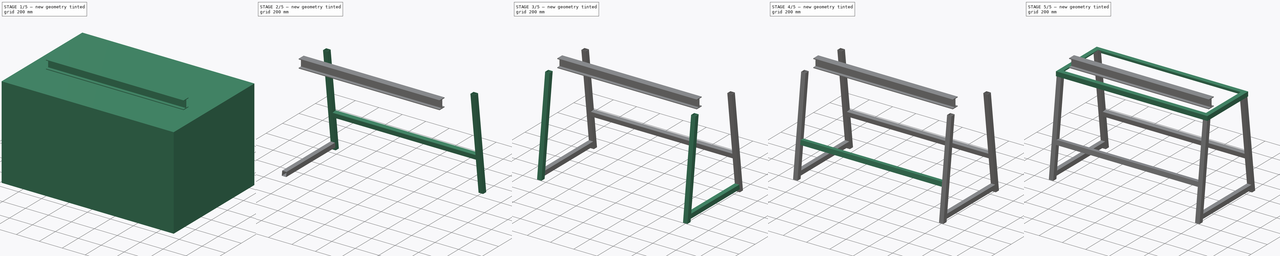
[diagram: build sequence overview — one tinted view per stage of 5, left to right]
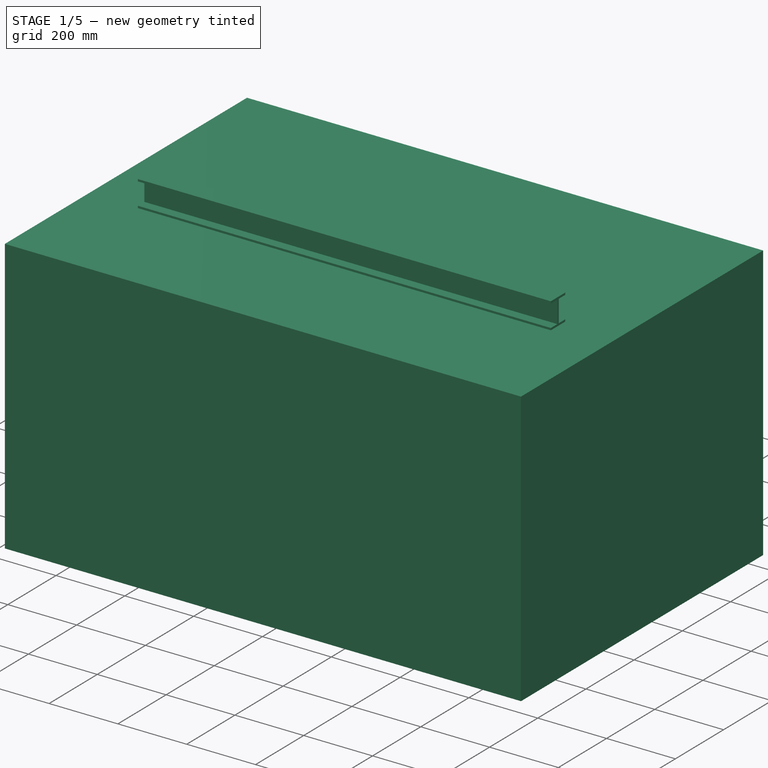
[diagram: stage 1 of 5 — iso view after this stage's code; geometry added in this stage tinted green]
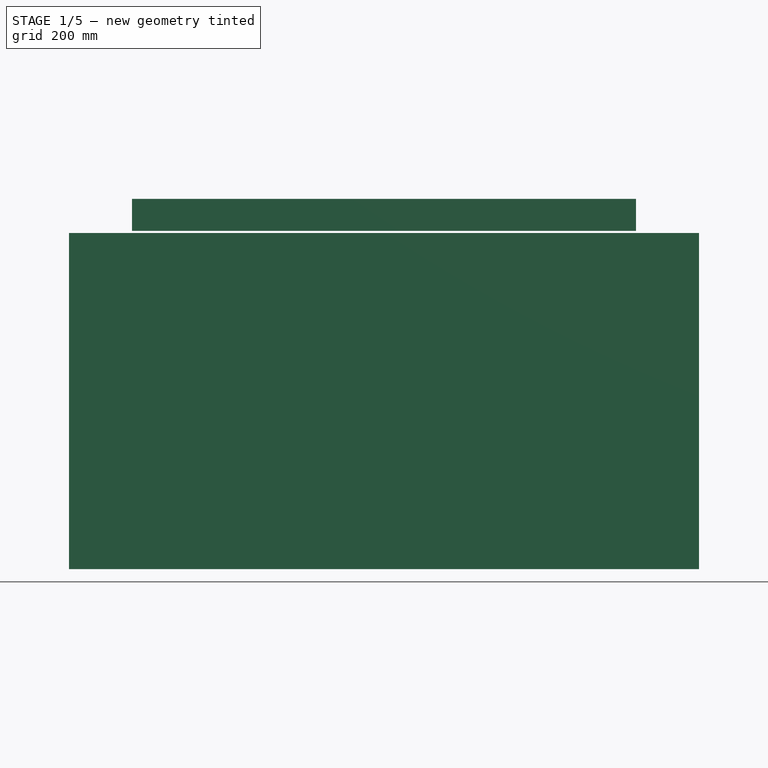
[diagram: stage 1 of 5 — front view after this stage's code; geometry added in this stage tinted green]
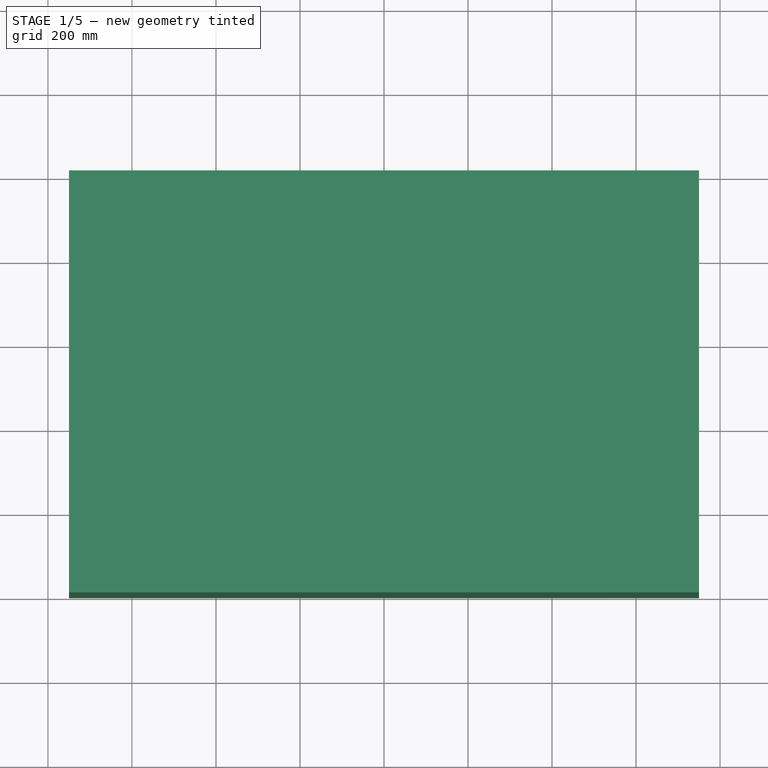
[diagram: stage 1 of 5 — top view after this stage's code; geometry added in this stage tinted green]
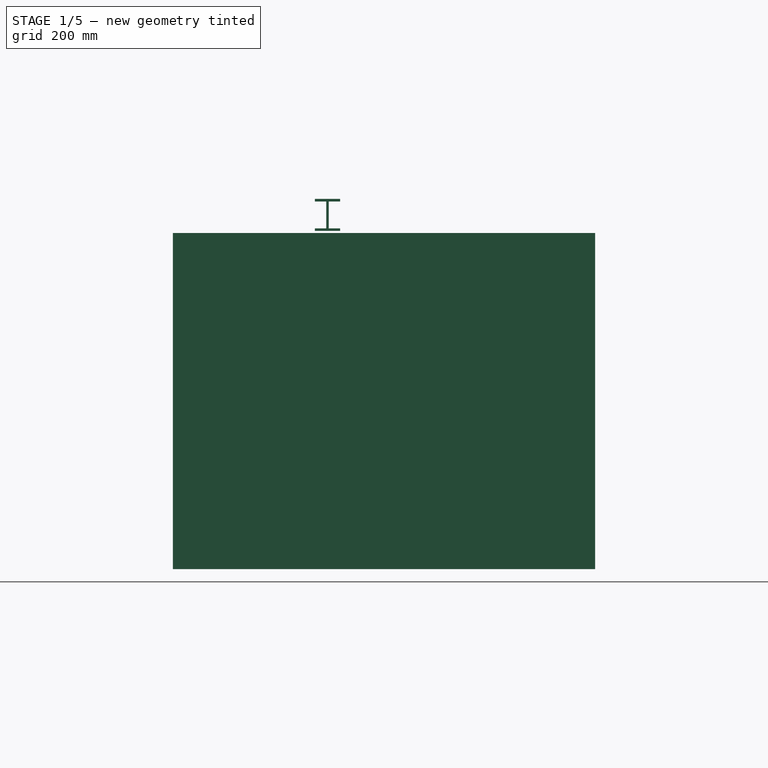
[diagram: stage 1 of 5 — right view after this stage's code; geometry added in this stage tinted green]
FCSTD DOCUMENT  (FreeCAD 0.18.4R)
Label: MESA_Dobladora
License: All rights reserved
LicenseURL: http://en.wikipedia.org/wiki/All_rights_reserved
objects: Part::Cut×11, Part::Fuse×6, Part::MultiFuse×4, Sketcher::SketchObject×3, Part::Extrusion×3, Part::Feature×1
note: 28 computed .brp shape members not serialized (recipe doc carries the construction recipe); baked Part::Feature solids carry a one-line shape summary decoded from their .brp

FEATURE [Sketcher::SketchObject] Sketch
  Placement = pos=(0,0,0) rot=(1,0,0;1.5708rad)
  sketch-geometry (4):
    g0: LineSegment StartX=-750 StartY=800 StartZ=0 EndX=750 EndY=800 EndZ=0
    g1: LineSegment StartX=750 StartY=800 StartZ=0 EndX=750 EndY=0 EndZ=0
    g2: LineSegment StartX=750 StartY=0 StartZ=0 EndX=-750 EndY=5.68e-14 EndZ=0
    g3: LineSegment StartX=-750 StartY=5.68e-14 StartZ=0 EndX=-750 EndY=800 EndZ=0
  constraints (11):
    c: Coincident(g0,g1)
    c: Coincident(g1,g2)
    c: Coincident(g2,g3)
    c: Coincident(g3,g0)
    c: Horizontal(g0)
    c: Vertical(g1)
    c: Vertical(g3)
    c: DistanceX(g0,g0) = 1500
    c: Symmetric(g1,g2,g-2)
    c: DistanceY(g3,g3) = 800
    c: DistanceY(g-1,g0) = 800
FEATURE [Part::Extrusion] Extrude  label="CajaMetafisik"
  Base = -> Sketch
  Dir = (0,-1,0)
  DirMode = 2
  FaceMakerClass = Part::FaceMakerBullseye
  LengthFwd = 1007
  LengthRev = -2
  Placement = pos=(0,0,-800) rot=(0,0,1;0rad)
  Reversed = true
  Solid = true
  Symmetric = false
FEATURE [Sketcher::SketchObject] Sketch001
  sketch-geometry (4):
    g0: LineSegment StartX=-650 StartY=750 StartZ=0 EndX=650 EndY=750 EndZ=0
    g1: LineSegment StartX=650 StartY=750 StartZ=0 EndX=650 EndY=250 EndZ=0
    g2: LineSegment StartX=650 StartY=250 StartZ=0 EndX=-650 EndY=250 EndZ=0
    g3: LineSegment StartX=-650 StartY=250 StartZ=0 EndX=-650 EndY=750 EndZ=0
  constraints (12):
    c: Coincident(g0,g1)
    c: Coincident(g1,g2)
    c: Coincident(g2,g3)
    c: Coincident(g3,g0)
    c: Horizontal(g0)
    c: Horizontal(g2)
    c: Vertical(g1)
    c: Vertical(g3)
    c: DistanceX(g0,g0) = 1300
    c: DistanceY(g3,g3) = 500
    c: DistanceY(g-1,g1) = 250
    c: DistanceX(g2,g-1) = 650
FEATURE [Part::Extrusion] Extrude001  label="SuperficieLamina"
  Base = -> Sketch001
  Dir = (0,0,1)
  DirMode = 2
  FaceMakerClass = Part::FaceMakerBullseye
  LengthFwd = 5
  LengthRev = 0
  Solid = true
  Symmetric = false
FEATURE [Part::Feature] Cut  label="Anguloc45_130cm_front"
  Placement = pos=(-650,750,0) rot=(0.57735,-0.57735,0.57735;4.18879rad)
  shape: bbox 1300 x 38.1 x 38.1 mm, 8 faces (baked)
FEATURE [Part::Cut] Cut003  label="Anguloc45_130cm_back"
  Base = -> Cut
  Placement = pos=(650,250,0) rot=(0.57735,0.57735,-0.57735;4.18879rad)
FEATURE [Part::Cut] Cut013  label="chiroIzq"
  Base = -> Cut003
  Placement = pos=(-608.77,201,-780) rot=(0,0,1;1.5708rad)
  Tool = -> Extrude001
FEATURE [Sketcher::SketchObject] Sketch004
  Placement = pos=(0,-76.2,-650) rot=(0,0,1;0rad)
  sketch-geometry (12):
    g0: LineSegment StartX=0 StartY=76.2 StartZ=0 EndX=0 EndY=70.2 EndZ=0
    g1: LineSegment StartX=0 StartY=70.2 StartZ=0 EndX=27 EndY=70.2 EndZ=0
    g2: LineSegment StartX=27 StartY=70.2 StartZ=0 EndX=27 EndY=6 EndZ=0
    g3: LineSegment StartX=27 StartY=6 StartZ=0 EndX=0 EndY=6 EndZ=0
    g4: LineSegment StartX=0 StartY=6 StartZ=0 EndX=0 EndY=0 EndZ=0
    g5: LineSegment StartX=0 StartY=0 StartZ=0 EndX=60 EndY=0 EndZ=0
    g6: LineSegment StartX=60 StartY=0 StartZ=0 EndX=60 EndY=6 EndZ=0
    g7: LineSegment StartX=60 StartY=6 StartZ=0 EndX=33 EndY=6 EndZ=0
    g8: LineSegment StartX=33 StartY=6 StartZ=0 EndX=33 EndY=70.2 EndZ=0
    g9: LineSegment StartX=33 StartY=70.2 StartZ=0 EndX=60 EndY=70.2 EndZ=0
    g10: LineSegment StartX=60 StartY=70.2 StartZ=0 EndX=60 EndY=76.2 EndZ=0
    g11: LineSegment StartX=60 StartY=76.2 StartZ=0 EndX=0 EndY=76.2 EndZ=0
  constraints (35):
    c: Vertical(g0)
    c: Coincident(g0,g1)
    c: Coincident(g1,g2)
    c: Vertical(g2)
    c: Coincident(g2,g3)
    c: Coincident(g3,g4)
    c: Vertical(g4)
    c: Coincident(g4,g5)
    c: Horizontal(g5)
    c: Coincident(g5,g6)
    c: Vertical(g6)
    c: Coincident(g6,g7)
    c: Coincident(g7,g8)
    c: Coincident(g8,g9)
    c: Coincident(g9,g10)
    c: Coincident(g10,g11)
    c: Coincident(g11,g0)
    c: DistanceX(g11,g11) = 60
    c: DistanceY(g4,g0) = 76.2
    c: Horizontal(g11)
    c: Horizontal(g9)
    c: Horizontal(g1)
    c: Horizontal(g3)
    c: Vertical(g10)
    c: Equal(g11,g5)
    c: Equal(g0,g4)
    c: Equal(g10,g0)
    c: Equal(g0,g6)
    c: Equal(g8,g2)
    c: DistanceY(g0,g0) = 6
    c: Equal(g1,g9)
    c: Equal(g9,g7)
    c: Equal(g7,g3)
    c: DistanceX(g1,g8) = 6
    c: Coincident(g4,g-1)
FEATURE [Part::Extrusion] Extrude003  label="Viga001"
  Base = -> Sketch004
  Dir = (0,0,1)
  DirMode = 2
  FaceMakerClass = Part::FaceMakerBullseye
  LengthFwd = 1200
  LengthRev = 0
  Placement = pos=(50,400,5) rot=(0.57735,-0.57735,0.57735;4.18879rad)
  Solid = true
  Symmetric = false
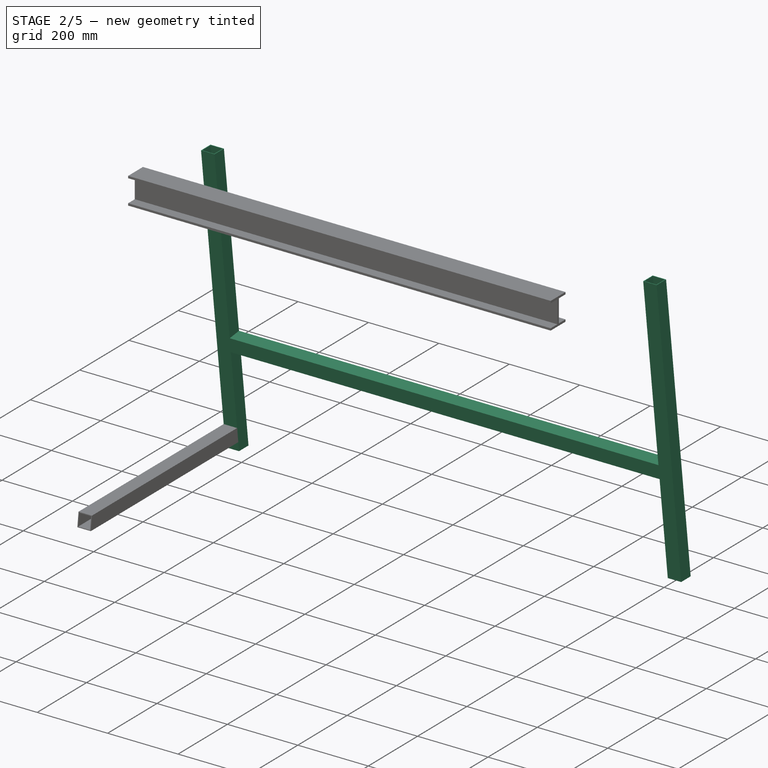
[diagram: stage 2 of 5 — iso view after this stage's code; geometry added in this stage tinted green]
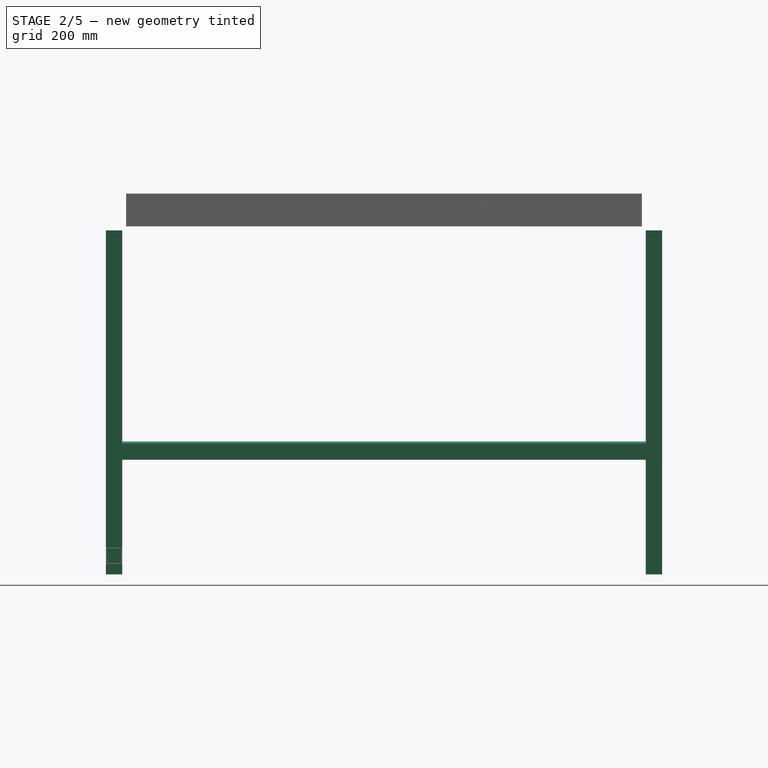
[diagram: stage 2 of 5 — front view after this stage's code; geometry added in this stage tinted green]
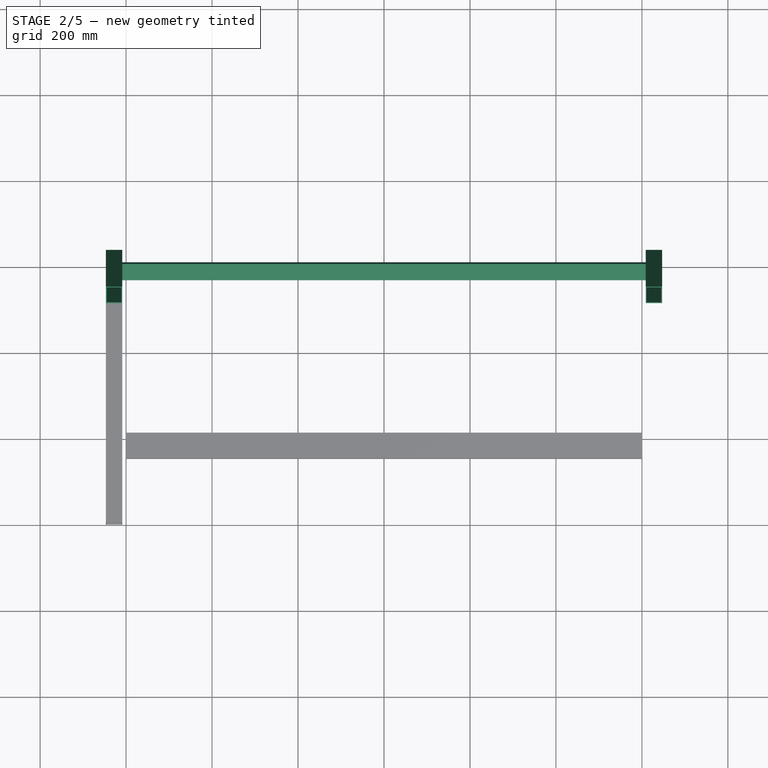
[diagram: stage 2 of 5 — top view after this stage's code; geometry added in this stage tinted green]
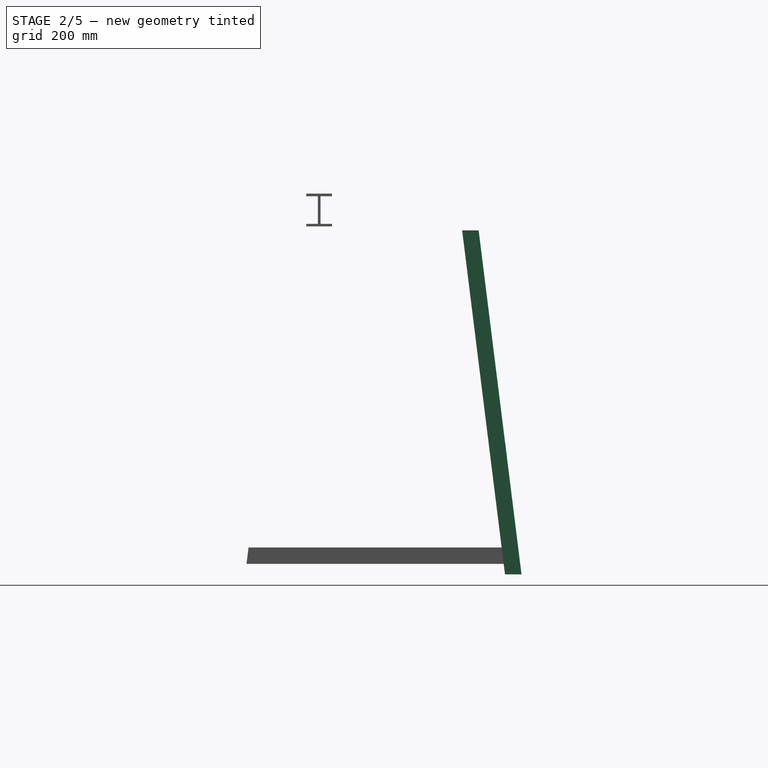
[diagram: stage 2 of 5 — right view after this stage's code; geometry added in this stage tinted green]
FEATURE [Part::Cut] Cut006  label="pataNE"
  Base = -> Cut
  Placement = pos=(608.775,804,-818) rot=(1,0,0;0.123918rad)
  Tool = -> Extrude
FEATURE [Part::Cut] Cut007  label="pataNO"
  Base = -> Cut
  Placement = pos=(-646.87,804,-818) rot=(1,0,0;0.123918rad)
  Tool = -> Extrude
FEATURE [Part::Cut] Cut011  label="refuerzo1"
  Placement = pos=(-608.77,764.5,-500) rot=(0.061801,0.996173,0.061801;1.57464rad)
FEATURE [Part::Fuse] Fusion003
  Base = -> Cut006
  Tool = -> Cut007
FEATURE [Part::MultiFuse] Fusion004  label="marcopats1"
  Shapes = -> [Cut011,Fusion003]
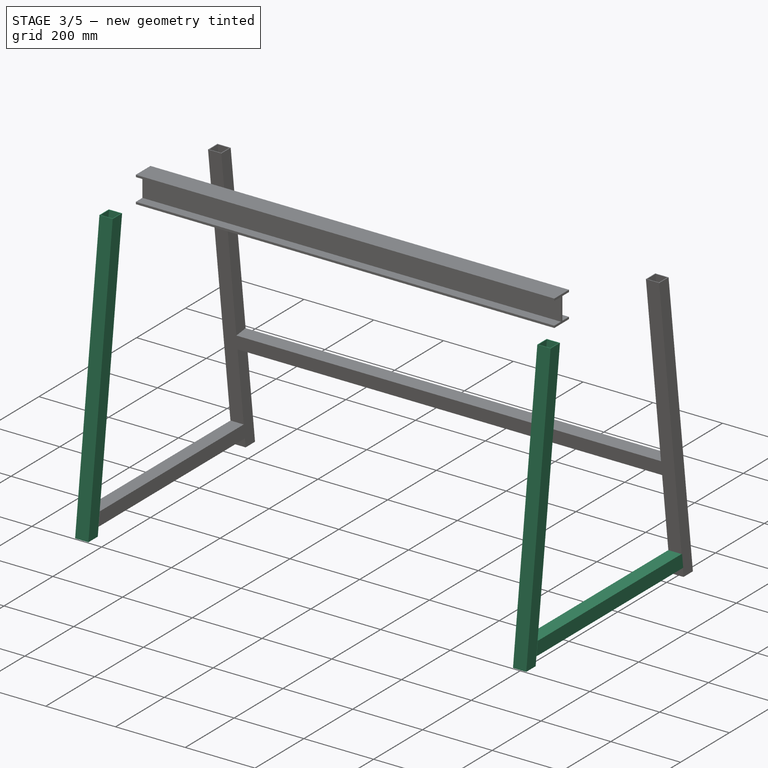
[diagram: stage 3 of 5 — iso view after this stage's code; geometry added in this stage tinted green]
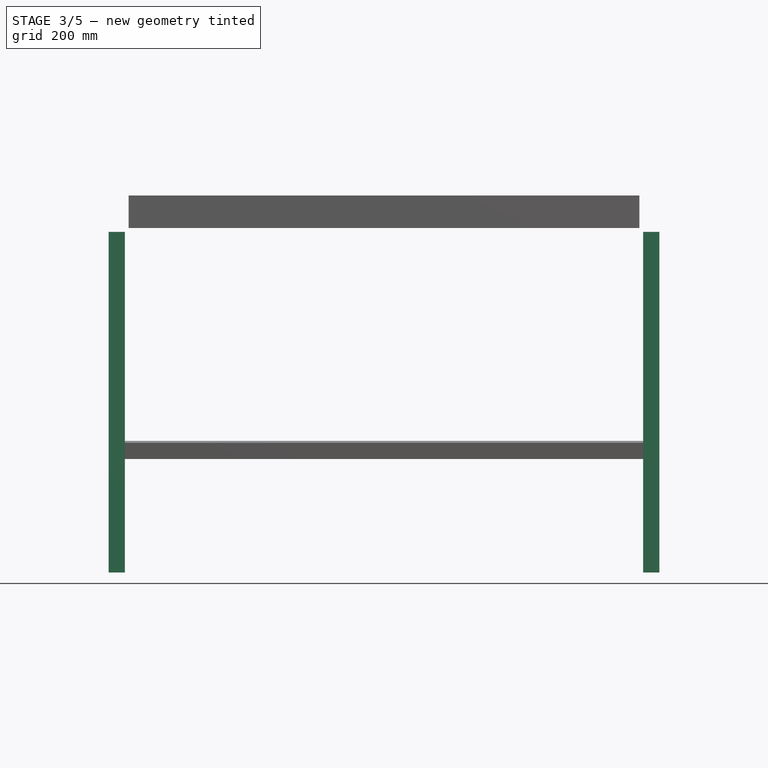
[diagram: stage 3 of 5 — front view after this stage's code; geometry added in this stage tinted green]
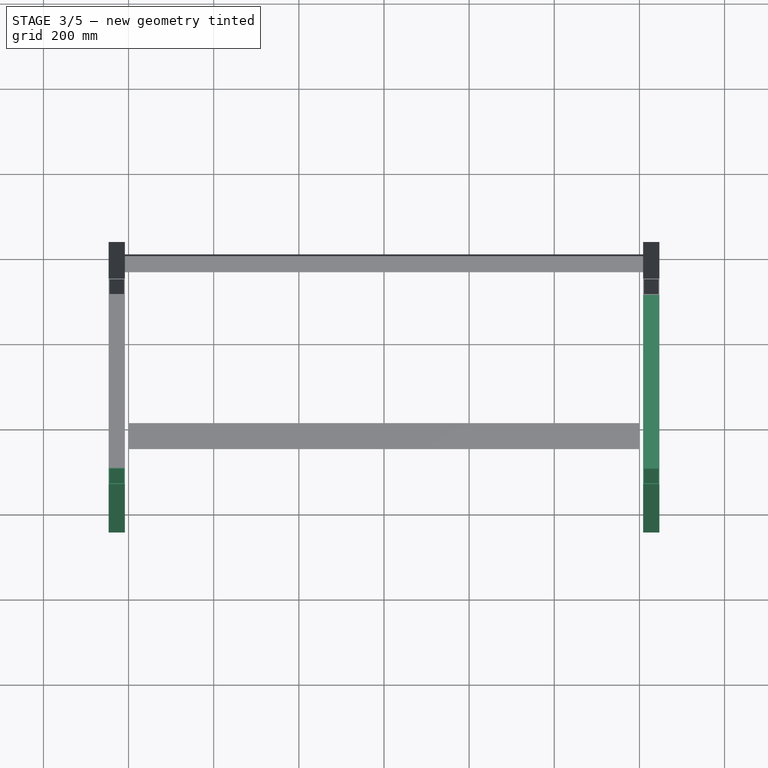
[diagram: stage 3 of 5 — top view after this stage's code; geometry added in this stage tinted green]
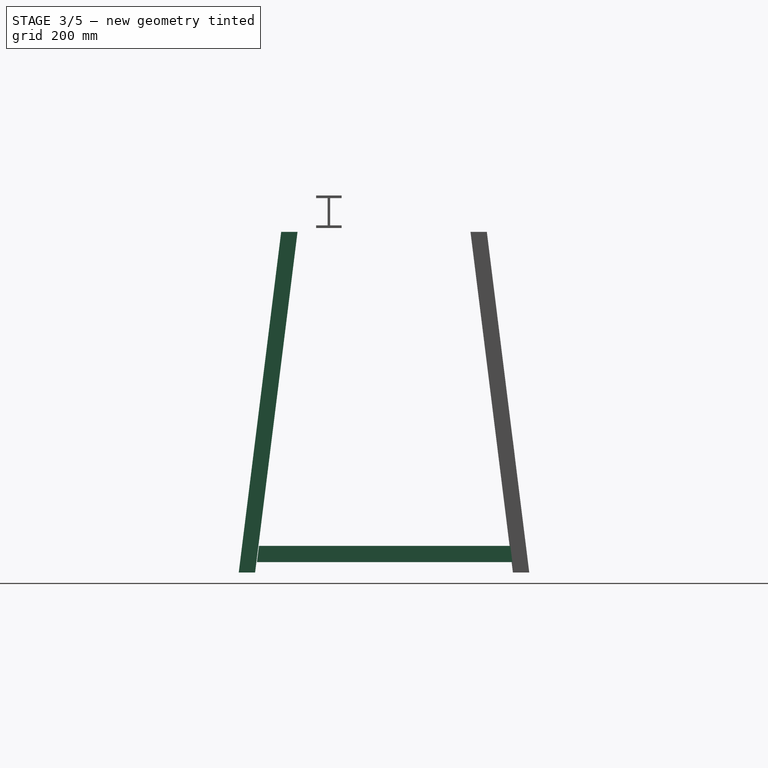
[diagram: stage 3 of 5 — right view after this stage's code; geometry added in this stage tinted green]
FEATURE [Part::Cut] Cut008  label="pataSE"
  Base = -> Cut
  Placement = pos=(-608.775,195,-818) rot=(0,0.06192,0.998081;3.14159rad)
  Tool = -> Extrude
FEATURE [Part::Cut] Cut009  label="pataSO"
  Base = -> Cut
  Placement = pos=(646.875,195,-818) rot=(0,0.06192,0.998081;3.14159rad)
  Tool = -> Extrude
FEATURE [Part::Cut] Cut012  label="chiroDer&lamina"
  Base = -> Cut003
  Placement = pos=(646.875,201,-780) rot=(0,0,1;1.5708rad)
  Tool = -> Extrude001
FEATURE [Part::Fuse] Fusion008
  Base = -> Fusion004
  Tool = -> Cut013
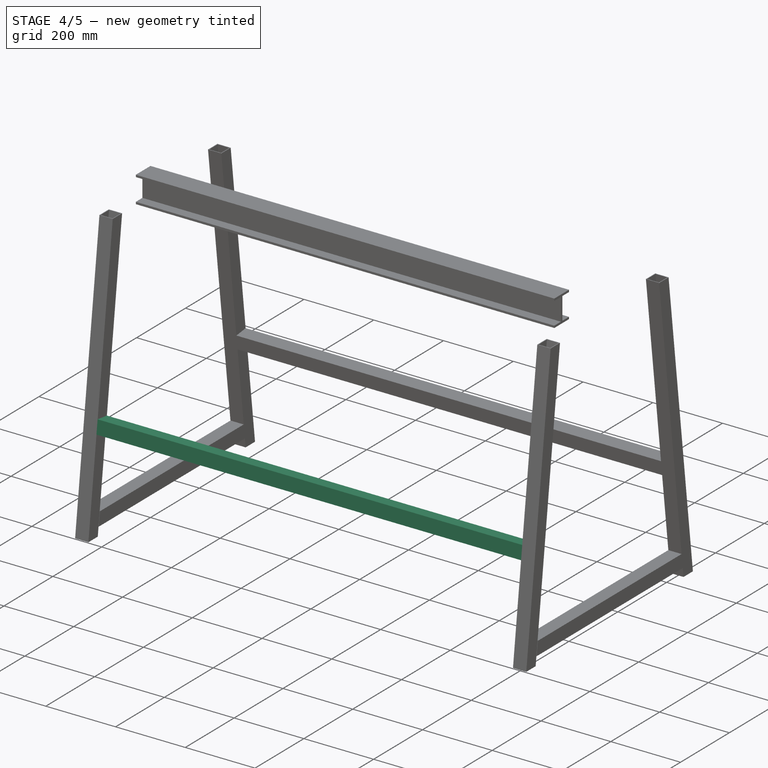
[diagram: stage 4 of 5 — iso view after this stage's code; geometry added in this stage tinted green]
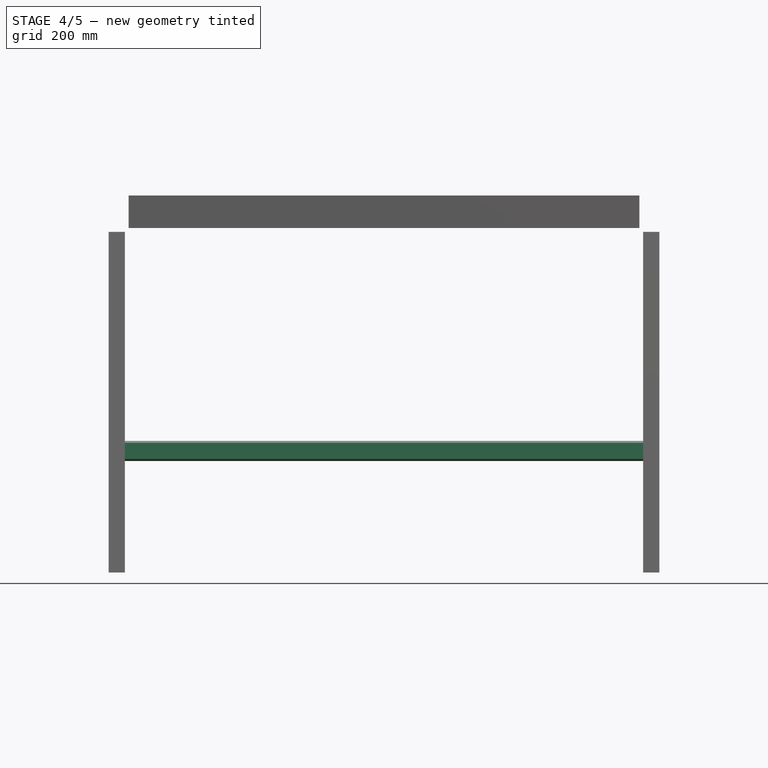
[diagram: stage 4 of 5 — front view after this stage's code; geometry added in this stage tinted green]
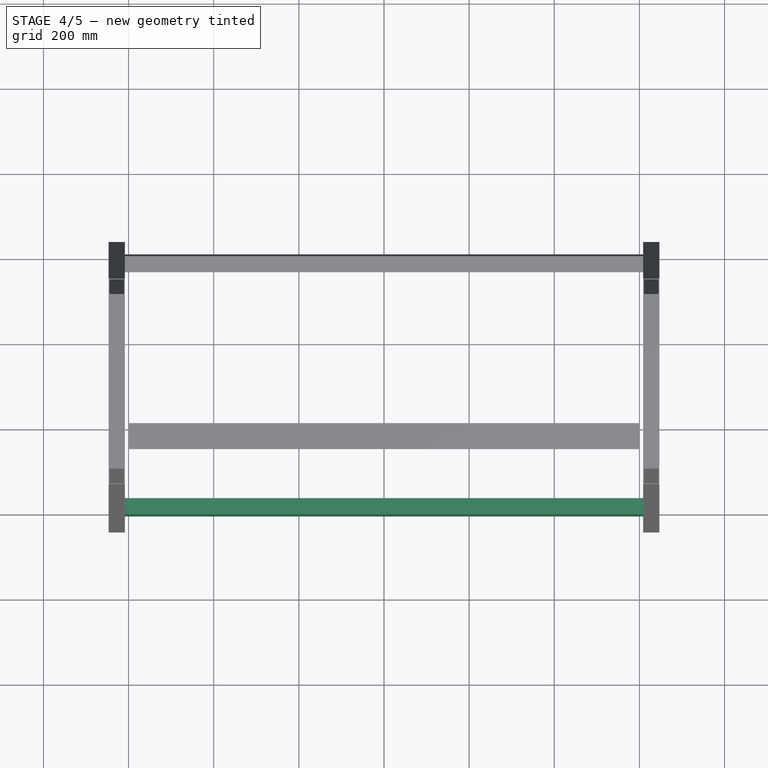
[diagram: stage 4 of 5 — top view after this stage's code; geometry added in this stage tinted green]
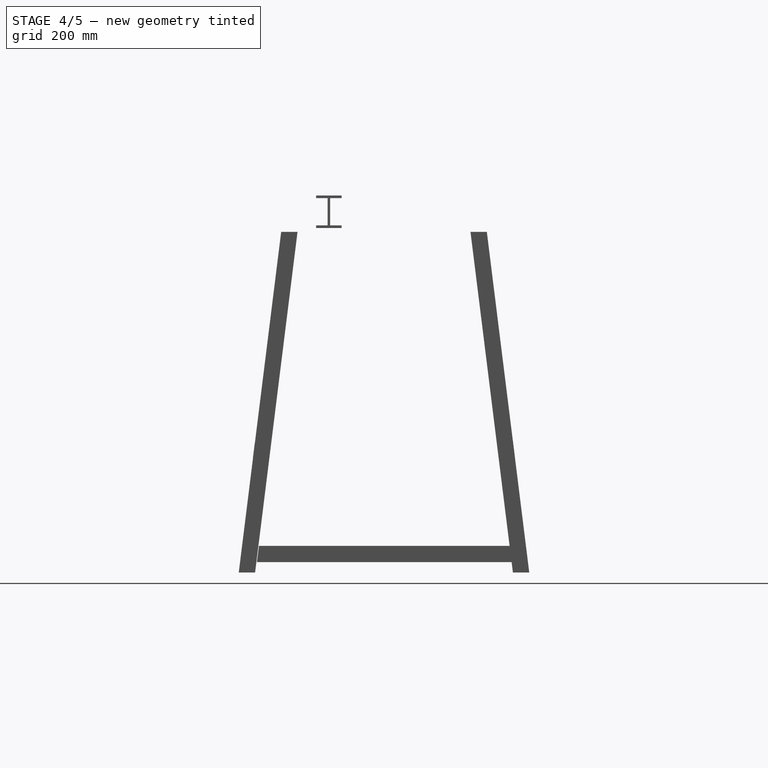
[diagram: stage 4 of 5 — right view after this stage's code; geometry added in this stage tinted green]
FEATURE [Part::Cut] Cut010  label="refuerzo2"
  Placement = pos=(-608.775,196,-500) rot=(-0.061801,0.996173,-0.061801;1.57463rad)
FEATURE [Part::MultiFuse] Fusion005
  Shapes = -> [Cut009,Cut008]
FEATURE [Part::MultiFuse] Fusion006  label="marcoPatas2"
  Shapes = -> [Cut010,Fusion005]
FEATURE [Part::Fuse] Fusion007
  Base = -> Fusion006
  Tool = -> Cut012
FEATURE [Part::Fuse] Fusion009  label="EstructuraMesa"
  Base = -> Fusion007
  Tool = -> Fusion008
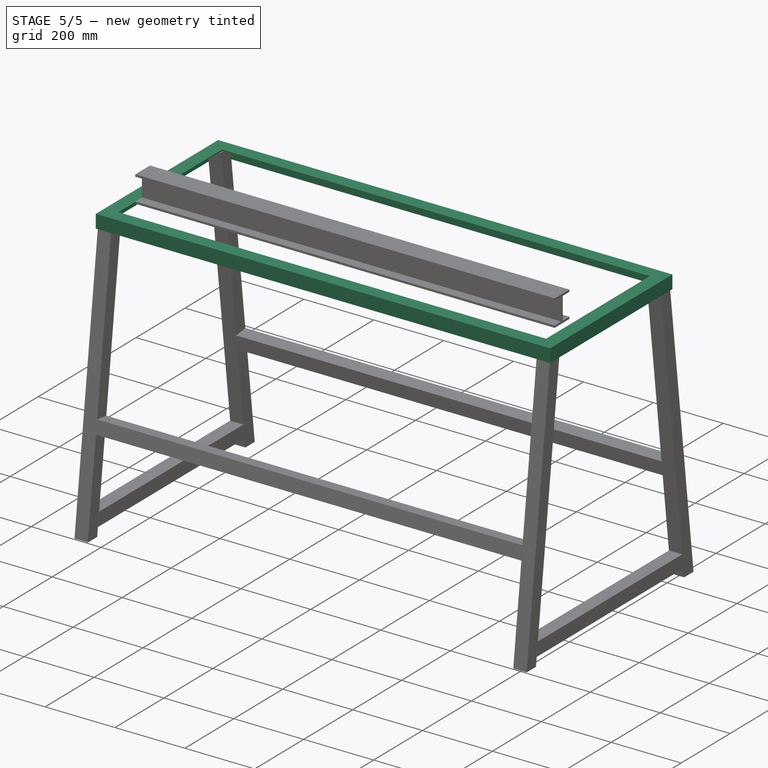
[diagram: stage 5 of 5 — iso view after this stage's code; geometry added in this stage tinted green]
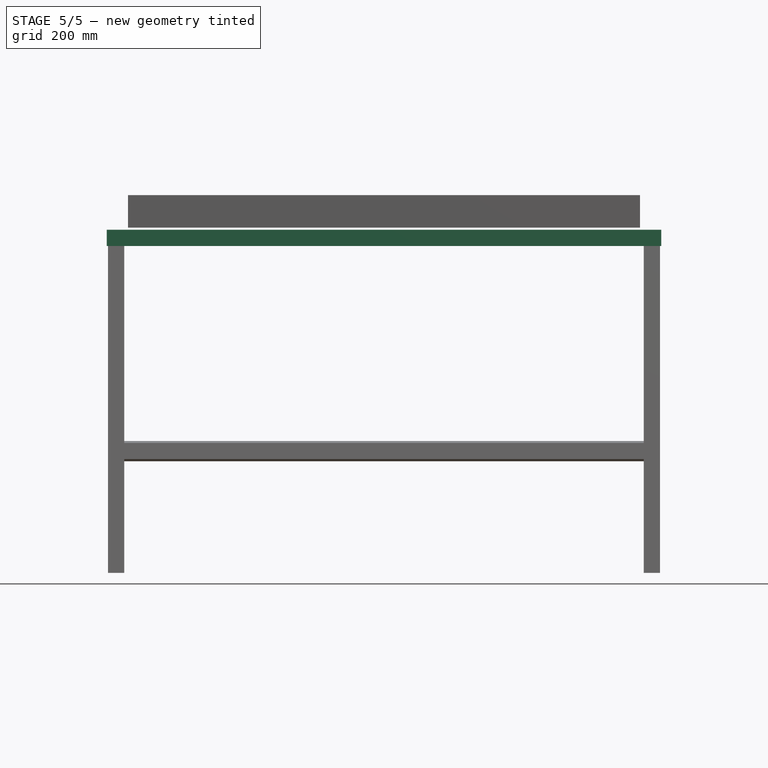
[diagram: stage 5 of 5 — front view after this stage's code; geometry added in this stage tinted green]
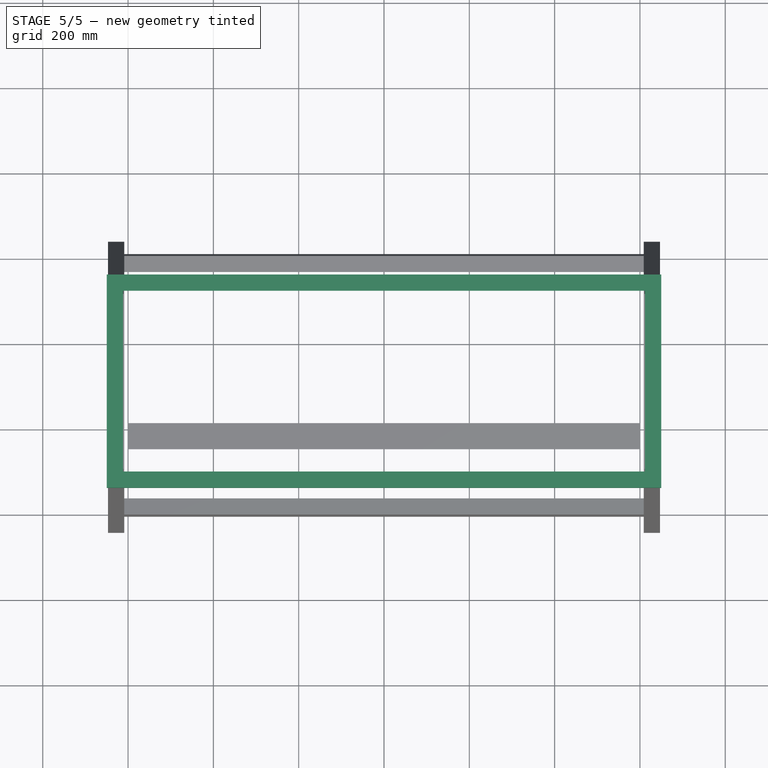
[diagram: stage 5 of 5 — top view after this stage's code; geometry added in this stage tinted green]
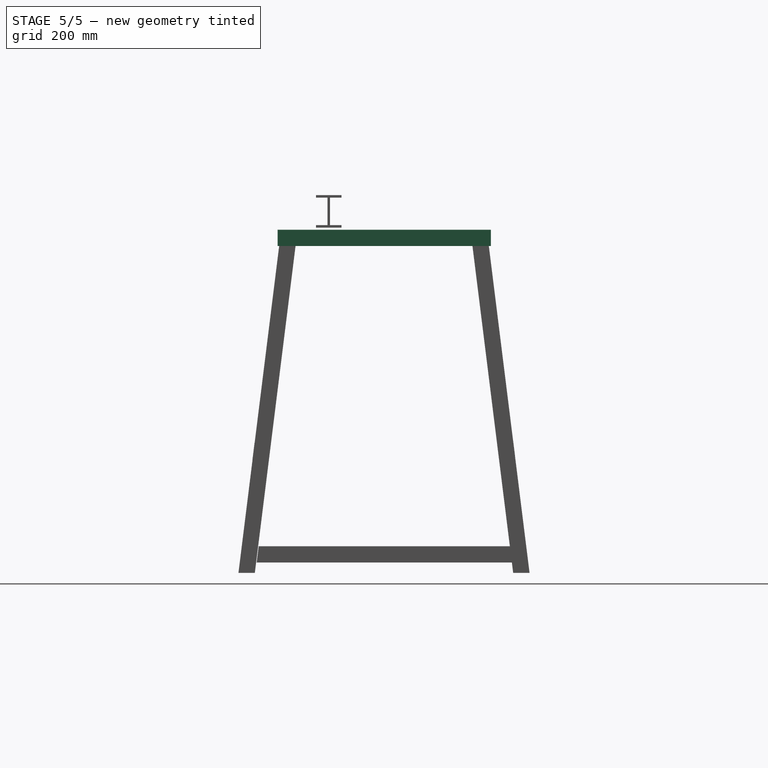
[diagram: stage 5 of 5 — right view after this stage's code; geometry added in this stage tinted green]
FEATURE [Part::Cut] Cut001  label="AngC45_50cm_izq"
  Base = -> Cut
  Placement = pos=(-650,250,0) rot=(-1,0,0;1.5708rad)
FEATURE [Part::Cut] Cut004  label="AngC45_50cm_der"
  Base = -> Cut
  Placement = pos=(650,750,0) rot=(0,0.707107,-0.707107;3.14159rad)
FEATURE [Part::Fuse] Fusion  label="fusionxd"
  Base = -> Cut
  Tool = -> Cut001
FEATURE [Part::Fuse] Fusion001
  Base = -> Cut003
  Tool = -> Cut004
FEATURE [Part::MultiFuse] Fusion002  label="maquitoFab"
  Shapes = -> [Fusion001,Fusion]
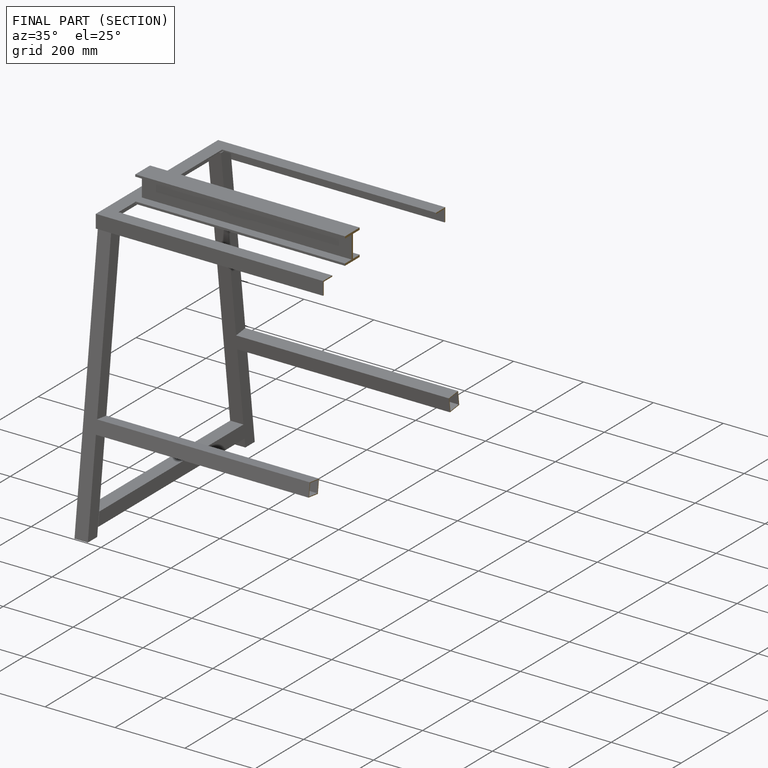
[diagram: finished part — half-section view (interior)]
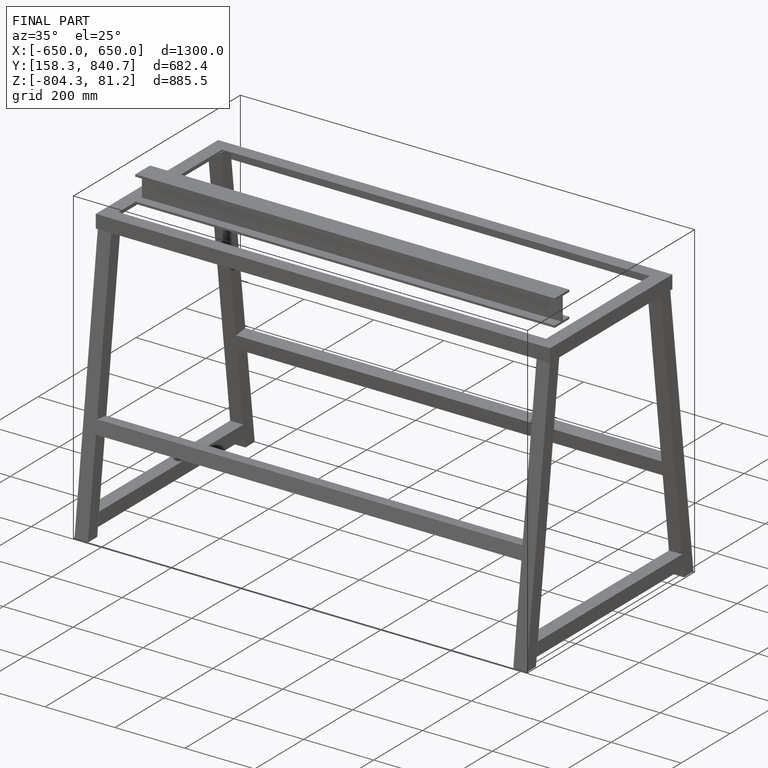
[diagram: finished part — iso view with bounding-box wireframe]
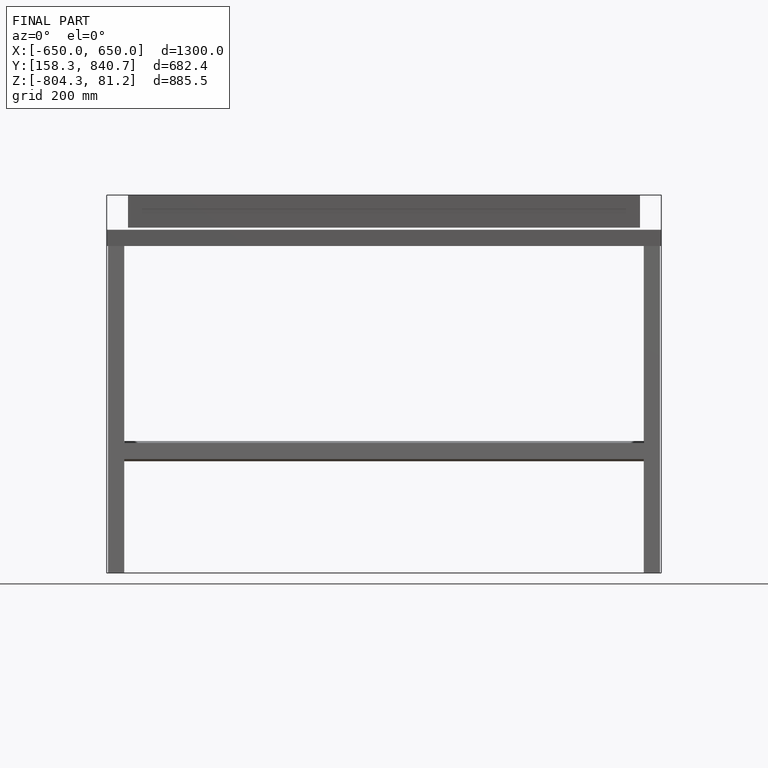
[diagram: finished part — front view with bounding-box wireframe]
